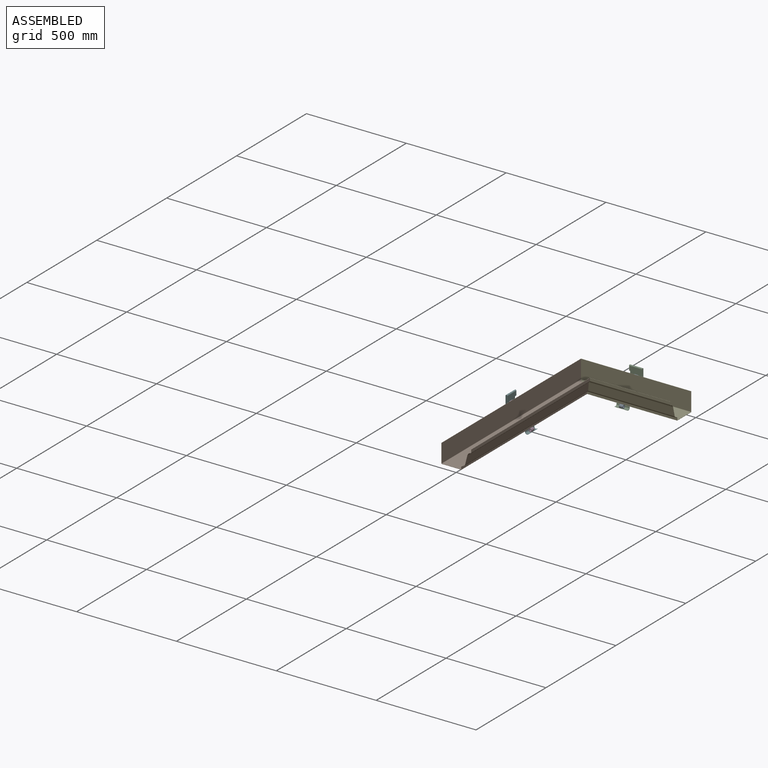
[diagram: assembled view]
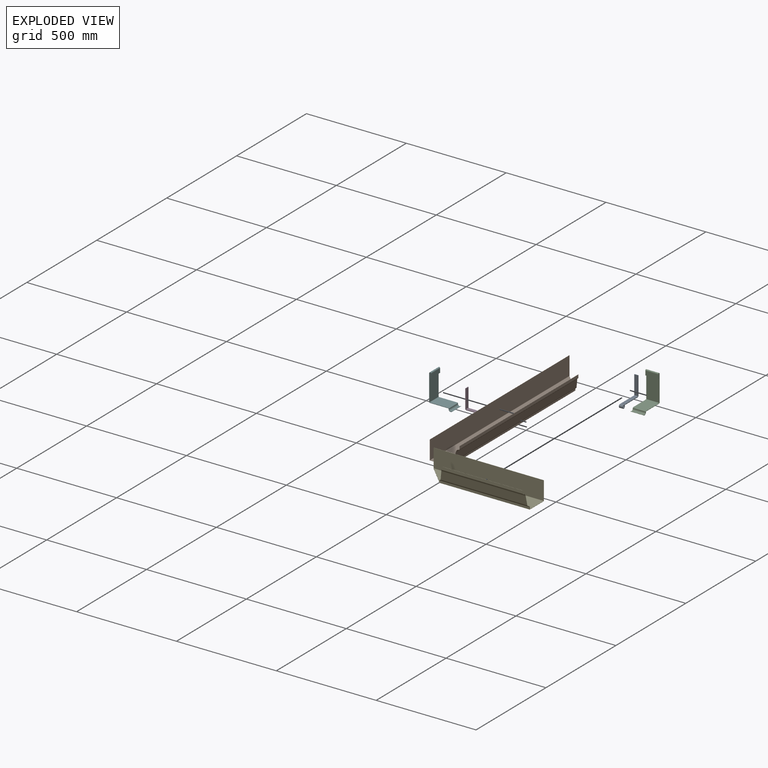
[diagram: exploded view]
GUIDED TOUR — MATED ASSEMBLY (Onshape document b7205769f9f9306b6174eeb3, AutoMate assembly b7205769f9f9306b6174eeb3_b50e65c4dc215c41da958e11_097d753cb203ef7b1b8f59bb_default)

This assembly has 6 components, labeled P0..P5 below (a component is one placed occurrence of a part; the same part can appear more than once), held together by 4 mates. A mate is a constraint between two components; its type names the relative motion it leaves free:
  FASTENED — locks the two components together rigidly (no relative motion),
  REVOLUTE — leaves rotation about the listed axis free (a hinge).
Axis/direction vectors are unit vectors and 'through' points are millimeter coordinates, both in the assembly's world frame.

MATES
  1. FASTENED "Fastened 1": P1 <-> P3, direction (-1.000, 0.000, 0.000) through (-52.86, -30.80, -22.14) mm
  2. REVOLUTE "Revolute 1": P3 <-> P5, axis (0.000, 1.000, 0.000) through (49.14, -30.80, -125.32) mm
  3. FASTENED "Fastened 3": P0 <-> P4, direction (0.000, -1.000, 0.000) through (223.16, 468.43, -22.14) mm
  4. REVOLUTE "Revolute 1": P0 <-> P2, axis (1.000, 0.000, 0.000) through (223.16, 366.43, -125.32) mm

ASSEMBLY ORDER
  1. P4 — the base component [order verified]
  2. P0 [order verified]
  3. P3 [order verified]
  4. P1 [order verified]
  5. P2 [order verified]
  6. P5 [order verified]
Order-tag legend:
  [order verified] — this step's position reverses a verified removal order: the component was checked to insert without passing through the ones already placed.

Of the 6 components, 2 carry the full construction recipe — the FeatureScript program that regenerates the part's solid from scratch; the rest are supplied as boundary geometry only.
Each toured component is shown spotlighted twice — in the assembled view, then in the exploded view, where a leader line traces a displaced component back to its assembled socket (saturated green if recipe-attached, orange if geometry-only; every other component desaturated gray) — followed by its recipe or geometry summary and the mates that hold it.
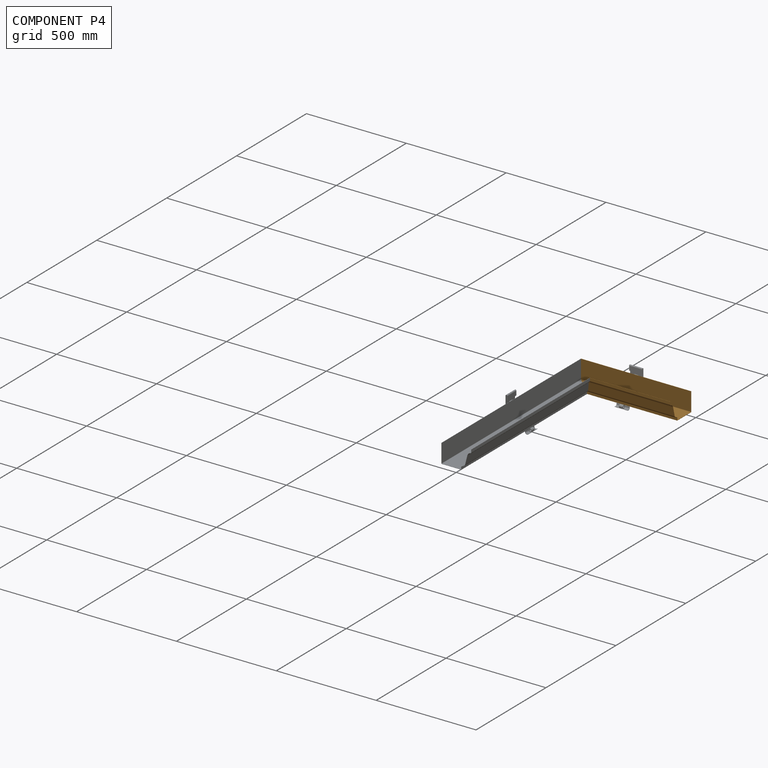
[diagram: component P4 — assembled]
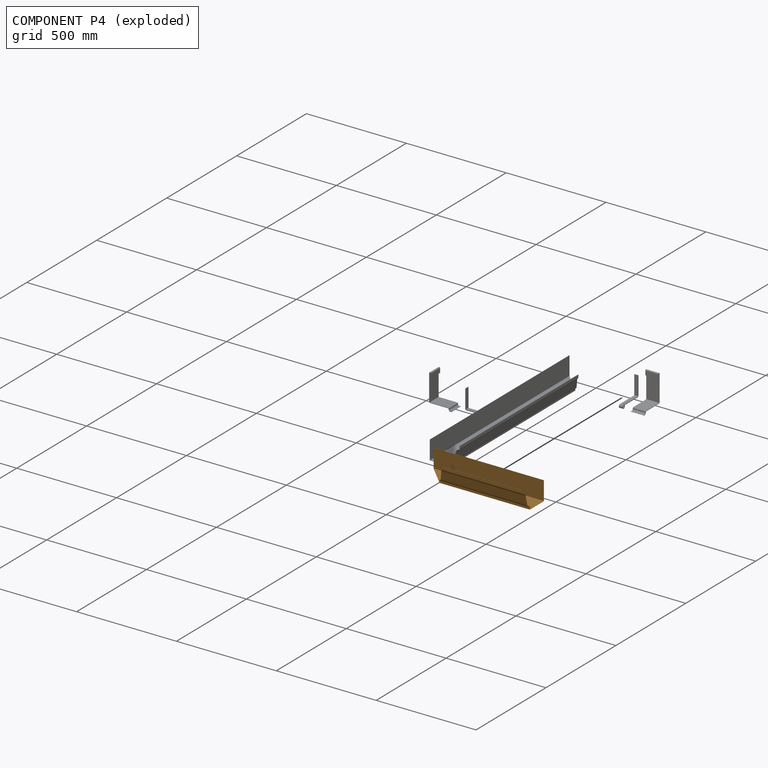
[diagram: component P4 — exploded]
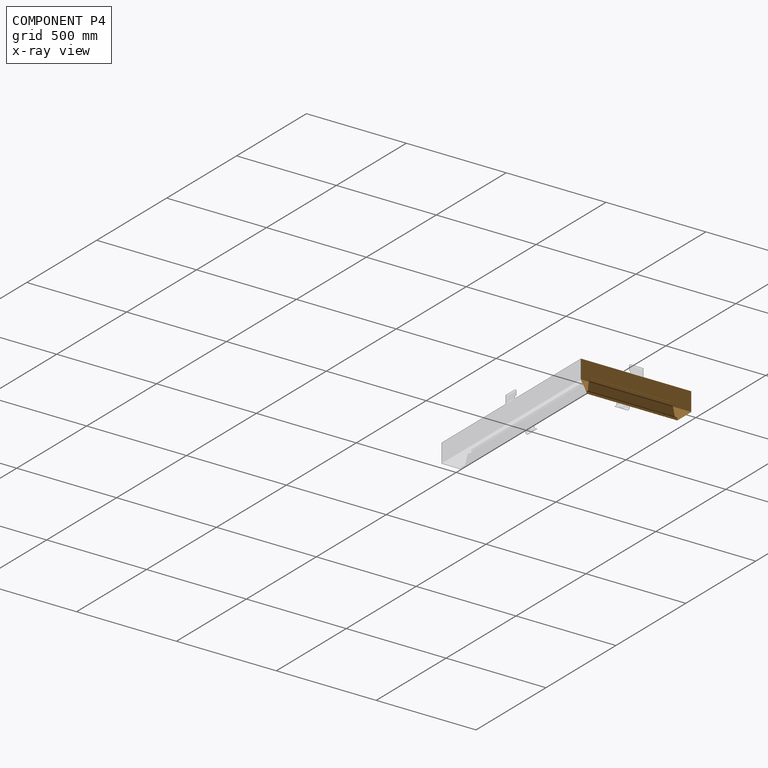
[diagram: component P4 — x-ray view]
COMPONENT P4 — geometry summary (no construction recipe available for this part):
  bounding box: 552.0 x 150.0 x 105.0 mm
  B-rep topology: 1 solid, 28 faces, 160 edges
  volume: 154924 mm^3 (2% of its bounding box)
Held by: FASTENED mate "Fastened 3" to P0.
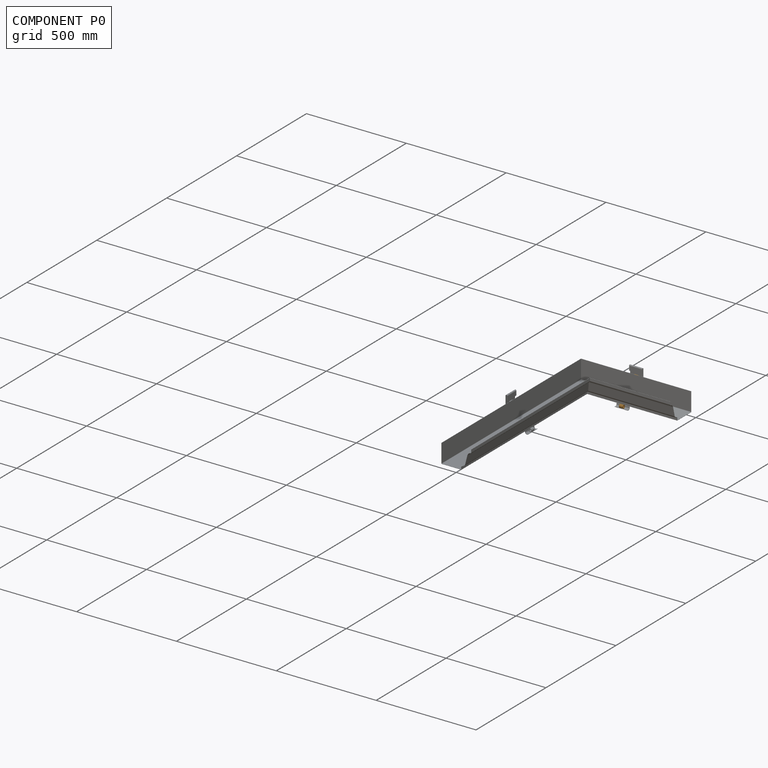
[diagram: component P0 — assembled]
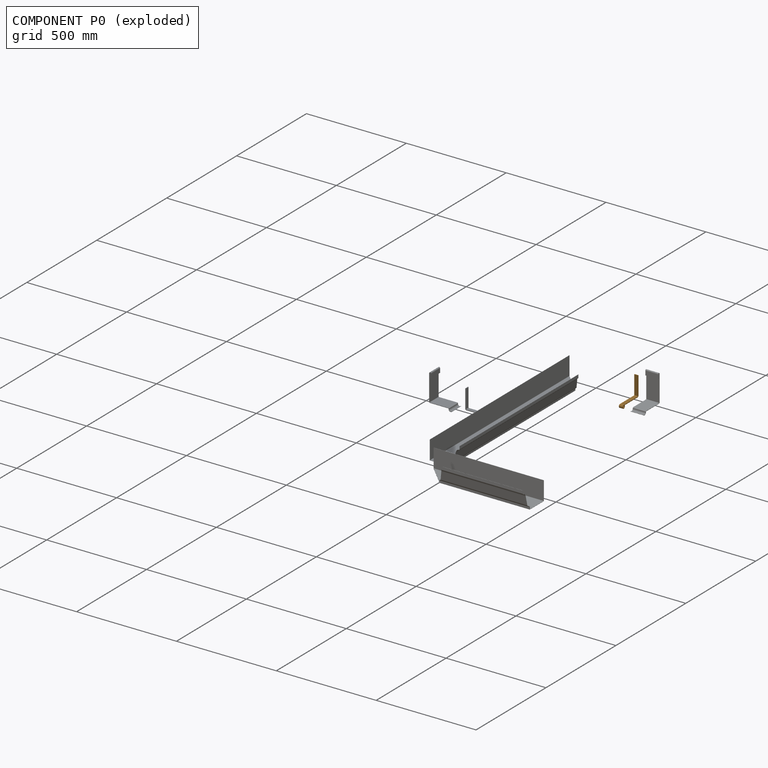
[diagram: component P0 — exploded]
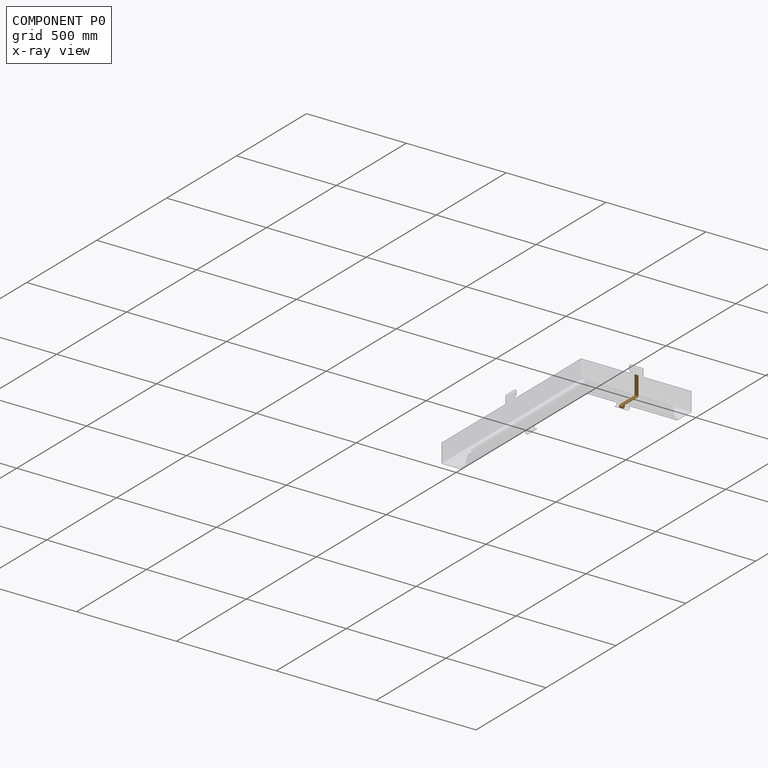
[diagram: component P0 — x-ray view]
COMPONENT P0 — geometry summary (no construction recipe available for this part):
  bounding box: 113.4 x 111.4 x 19.0 mm
  B-rep topology: 1 solid, 15 faces, 78 edges
  volume: 14197 mm^3 (6% of its bounding box)
Held by: FASTENED mate "Fastened 3" to P4; REVOLUTE mate "Revolute 1" to P2.
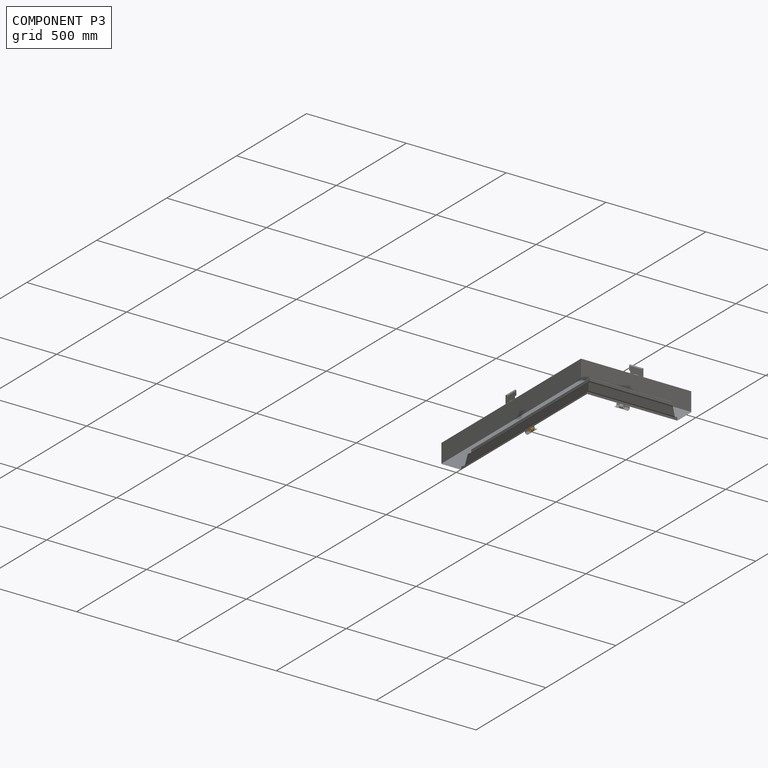
[diagram: component P3 — assembled]
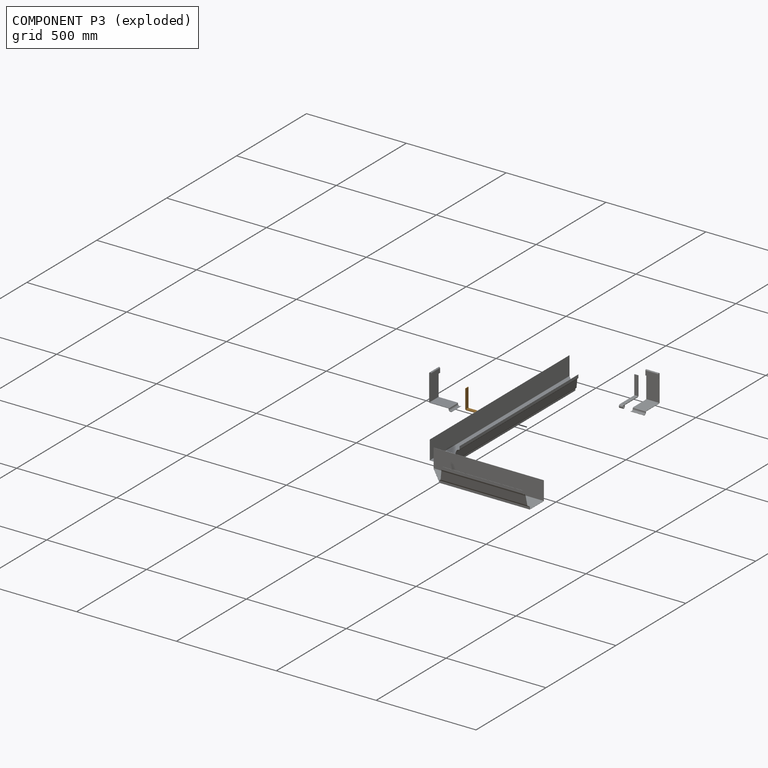
[diagram: component P3 — exploded]
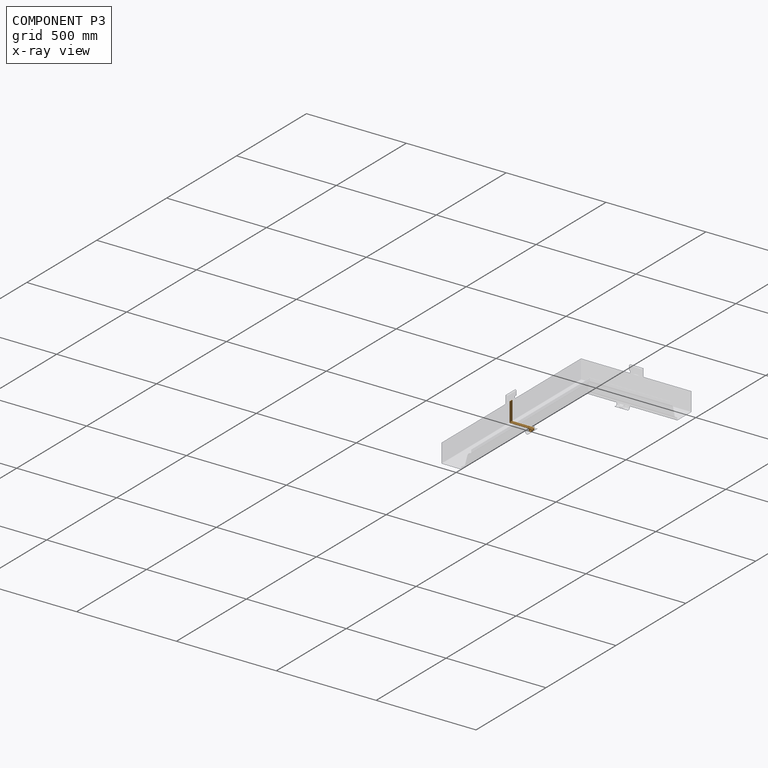
[diagram: component P3 — x-ray view]
COMPONENT P3 — geometry summary (no construction recipe available for this part):
  bounding box: 113.4 x 111.4 x 19.0 mm
  B-rep topology: 1 solid, 15 faces, 78 edges
  volume: 14197 mm^3 (6% of its bounding box)
Held by: FASTENED mate "Fastened 1" to P1; REVOLUTE mate "Revolute 1" to P5.
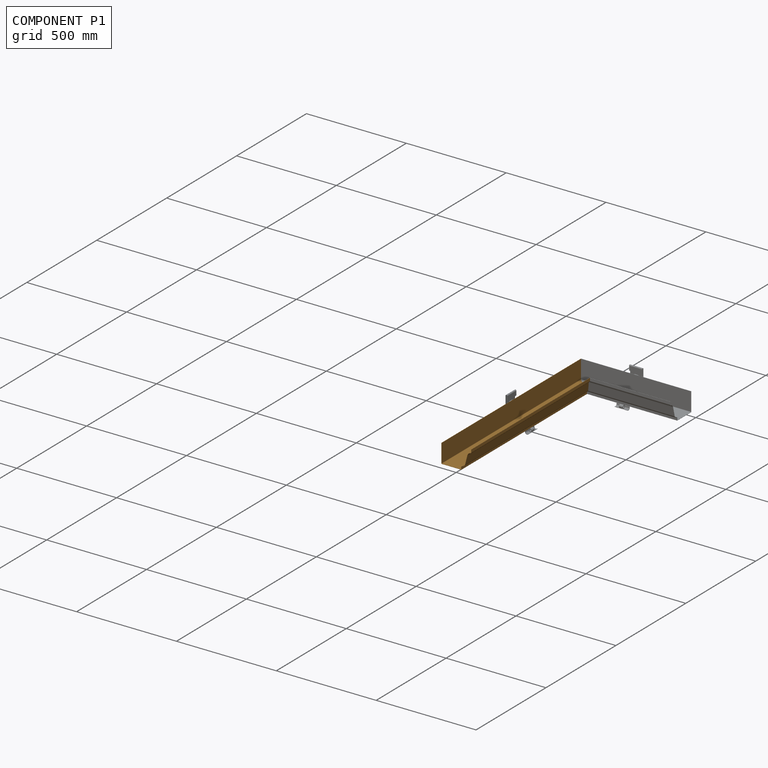
[diagram: component P1 — assembled]
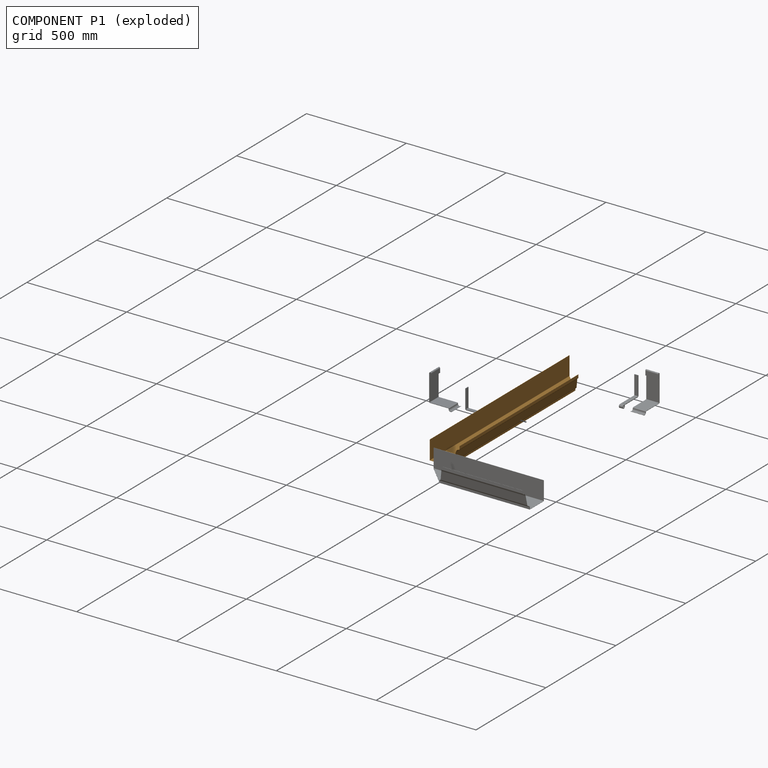
[diagram: component P1 — exploded]
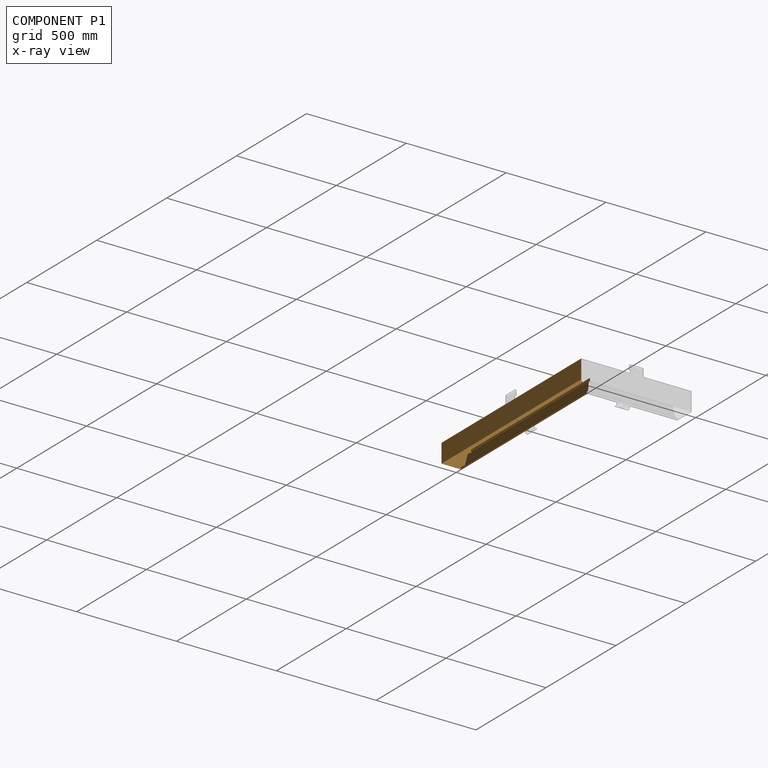
[diagram: component P1 — x-ray view]
COMPONENT P1 — geometry summary (no construction recipe available for this part):
  bounding box: 998.5 x 150.0 x 105.0 mm
  B-rep topology: 1 solid, 27 faces, 152 edges
  volume: 297000 mm^3 (2% of its bounding box)
Held by: FASTENED mate "Fastened 1" to P3.
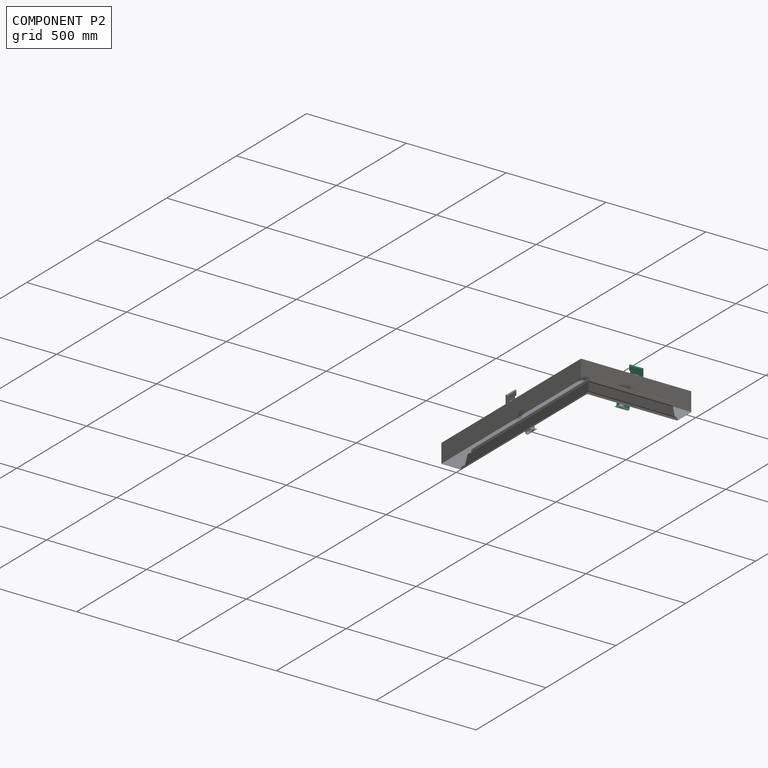
[diagram: component P2 — assembled]
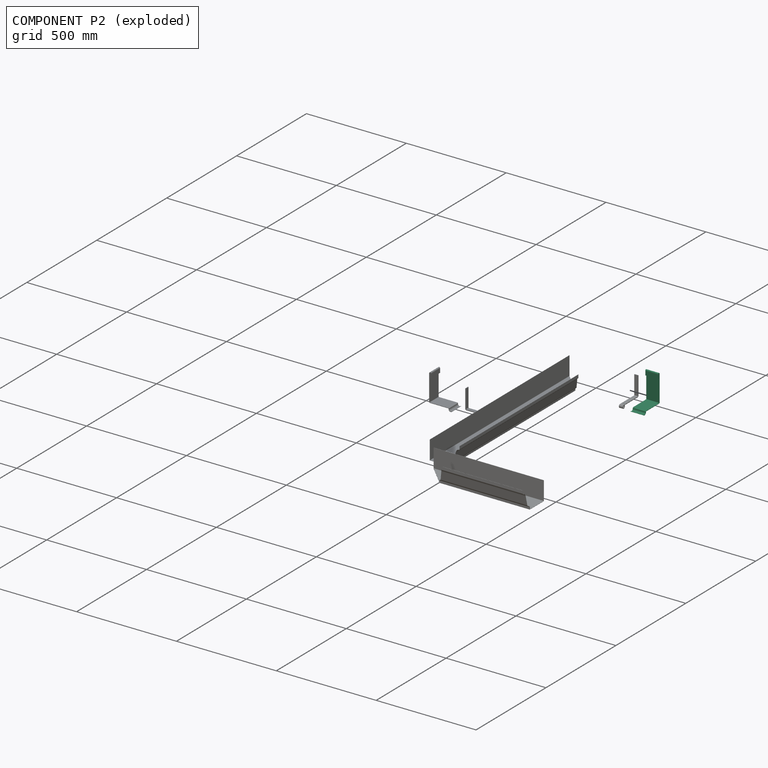
[diagram: component P2 — exploded]
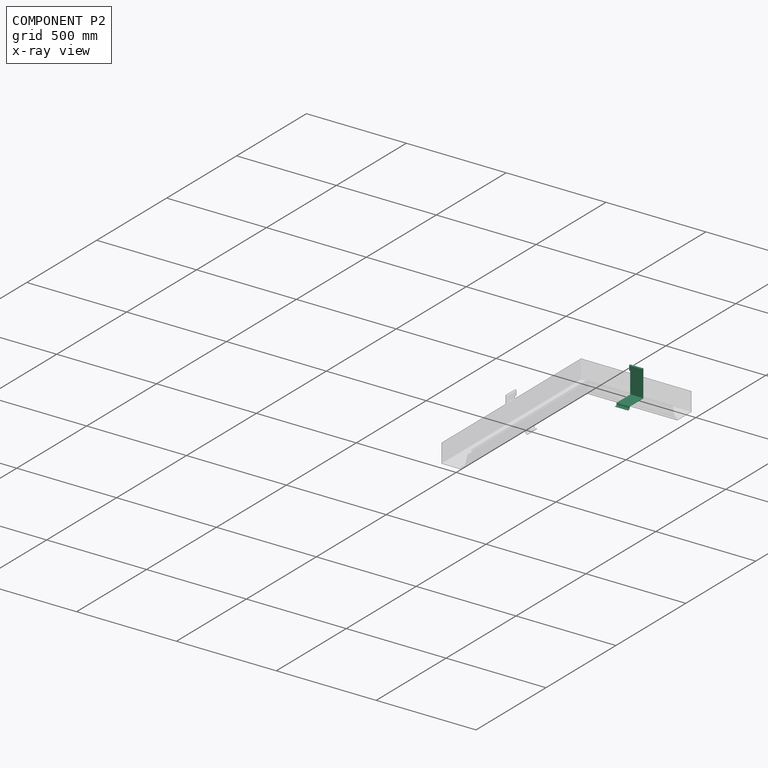
[diagram: component P2 — x-ray view]
COMPONENT P2 — recipe-attached (CADFS 00960272, mesh-verified: the recipe's output STEP matches this component's geometry to below the mesh-comparison resolution (tessellation chordal tolerance ~0.302 mm)).
Held by: REVOLUTE mate "Revolute 1" to P0.
Construction recipe (FeatureScript — the CAD program that rebuilds this solid; sketch coordinates are in the units given by the * unit suffixes, e.g. mm):

FeatureScript 1540;
import(path : "onshape/std/geometry.fs", version : "1540.0");
import(path : "onshape/std/common.fs", version : "1540.0");
const mm = millimeter;
const VERTEX = EntityType.VERTEX;
const EDGE = EntityType.EDGE;
const FACE = EntityType.FACE;
const BODY = EntityType.BODY;
function v(x, y){return vector(x, y);}
function OD(order){return orderDisambiguation(order);}
function OSD(set){return originalSetDisambiguation(set);}
function TD(topology){return topologyDisambiguation(topology);}
function TDD(query){return trueDependencyDisambiguation(query);}
function sQuery(a, b, c) {return sketchEntityQuery(a, b, c);}

annotation { "Feature Type Name" : "Feature", "Feature Type Description" : "" }
export const myFeature = defineFeature(function(context is Context, id is Id, definition is map)
    precondition{}
    {
        {
            var Q0;
            Q0=qCreatedBy(makeId("Front.planeOp"),FACE);
            var sketch = newSketch(context, id + "F0", { "sketchPlane" : qUnion([Q0])});
            skLineSegment(sketch, "E0.bottom", {"start": v(-50, 1.6) * mm, "end": v(50, 1.6) * mm});
            skLineSegment(sketch, "E0.top", {"start": v(-50, -1.6) * mm, "end": v(50, -1.6) * mm});
            skLineSegment(sketch, "E0.left", {"start": v(-50, 1.6) * mm, "end": v(-50, -1.6) * mm});
            skLineSegment(sketch, "E0.right", {"start": v(50, 1.6) * mm, "end": v(50, -1.6) * mm});
            skPoint(sketch, "E0.middle", {"position": v(0, 0) * mm});
            skPoint(sketch, "E1", {"position": v(-50, 6.6) * mm});
            skCircle(sketch, "E2", {"center": v(-50, 6.6) * mm, "radius": 5 * mm});
            skCircle(sketch, "E3", {"center": v(-50, 6.6) * mm, "radius": 8.2 * mm});
            skLineSegment(sketch, "E4.bottom", {"start": v(-50, 6.6) * mm, "end": v(-41.8, 6.6) * mm});
            skLineSegment(sketch, "E4.top", {"start": v(-50, 1.6) * mm, "end": v(-41.8, 1.6) * mm});
            skLineSegment(sketch, "E4.left", {"start": v(-50, 6.6) * mm, "end": v(-50, 1.6) * mm});
            skLineSegment(sketch, "E4.right", {"start": v(-41.8, 6.6) * mm, "end": v(-41.8, 1.6) * mm});
            skLineSegment(sketch, "E5.bottom", {"start": v(-50, 1.6) * mm, "end": v(-45, 1.6) * mm});
            skLineSegment(sketch, "E5.top", {"start": v(-50, 6.6) * mm, "end": v(-45, 6.6) * mm});
            skLineSegment(sketch, "E5.left", {"start": v(-50, 1.6) * mm, "end": v(-50, 6.6) * mm});
            skLineSegment(sketch, "E5.right", {"start": v(-45, 1.6) * mm, "end": v(-45, 6.6) * mm});
            skLineSegment(sketch, "E6.bottom", {"start": v(-45, 1.6) * mm, "end": v(-41.8, 1.6) * mm});
            skLineSegment(sketch, "E6.top", {"start": v(-45, 2.1) * mm, "end": v(-41.8, 2.1) * mm});
            skLineSegment(sketch, "E6.left", {"start": v(-45, 1.6) * mm, "end": v(-45, 2.1) * mm});
            skLineSegment(sketch, "E6.right", {"start": v(-41.8, 1.6) * mm, "end": v(-41.8, 2.1) * mm});
            skLineSegment(sketch, "E7.bottom", {"start": v(50, 1.6) * mm, "end": v(53.2, 1.6) * mm});
            skLineSegment(sketch, "E7.top", {"start": v(50, -131.6) * mm, "end": v(53.2, -131.6) * mm});
            skLineSegment(sketch, "E7.left", {"start": v(50, 1.6) * mm, "end": v(50, -131.6) * mm});
            skLineSegment(sketch, "E7.right", {"start": v(53.2, 1.6) * mm, "end": v(53.2, -131.6) * mm});
            skSolve(sketch);
        }
        {
            var Q0;
            {var subQ0=sQuery(id+"F0.wireOp",EDGE,"E0.left");Q0=makeQuery(id+"F0.imprint","IMPRINT",FACE,{"disambiguationData":[TD([[makeQuery(id+"F0.imprint","IMPRINT",EDGE,{"derivedFrom":subQ0}),-1.0]])]});}
            var Q1;
            {var subQ3=sQuery(id+"F0.wireOp",EDGE,"E6.top");var subQ5=sQuery(id+"F0.wireOp",EDGE,"E5.right");var subQ7=makeQuery(id+"F0.imprint","INTERSECT",VERTEX,{"derivedFrom":[subQ5,subQ3]});Q1=makeQuery(id+"F0.imprint","IMPRINT",FACE,{"disambiguationData":[TD([[makeQuery(id+"F0.imprint","IMPRINT",EDGE,{"disambiguationData":[TD([[subQ7,-1.0]])],"derivedFrom":subQ3}),1.0]])]});}
            var Q2;
            {var subQ1=sQuery(id+"F0.wireOp",EDGE,"E0.top");Q2=makeQuery(id+"F0.imprint","IMPRINT",FACE,{"disambiguationData":[TD([[makeQuery(id+"F0.imprint","IMPRINT",EDGE,{"derivedFrom":subQ1}),1.0]])]});}
            var Q3;
            {var subQ0=sQuery(id+"F0.wireOp",EDGE,"E0.left");Q3=makeQuery(id+"F0.imprint","IMPRINT",FACE,{"disambiguationData":[TD([[makeQuery(id+"F0.imprint","IMPRINT",EDGE,{"derivedFrom":subQ0}),1.0]])]});}
            var Q4;
            {var subQ0=sQuery(id+"F0.wireOp",EDGE,"E4.right");var subQ3=sQuery(id+"F0.wireOp",EDGE,"E6.top");var subQ5=makeQuery(id+"F0.imprint","INTERSECT",VERTEX,{"derivedFrom":[subQ0,subQ3]});Q4=makeQuery(id+"F0.imprint","IMPRINT",FACE,{"disambiguationData":[TD([[makeQuery(id+"F0.imprint","IMPRINT",EDGE,{"disambiguationData":[TD([[subQ5,1.0]])],"derivedFrom":subQ3}),1.0]])]});}
            var Q5;
            Q5=makeQuery(id+"F0.imprint","IMPRINT",FACE,{"disambiguationData":[TD([[makeQuery(id+"F0.imprint","IMPRINT",EDGE,{"derivedFrom":sQuery(id+"F0.wireOp",EDGE,"E0.right")}),1.0]])]});
            extrude(context, id + "F1", {"entities" : qUnion([Q0, Q1, Q2, Q3, Q4, Q5]), "depth" : 19 * mm, "offsetDistance" : 25 * mm});
        }
        {
            var Q0;
            Q0=makeQuery(id+"F1.opExtrude","SWEPT_EDGE",EDGE,{"disambiguationData":[OSD([sQuery(id+"F0.wireOp",EDGE,"E0.top"),sQuery(id+"F0.wireOp",EDGE,"E0.right"),sQuery(id+"F0.wireOp",EDGE,"E7.left")])]});
            fillet(context, id + "F2", {"entities" : qUnion([Q0]), "radius" : 2 * mm, "tangentPropagation" : true, "allowEdgeOverflow" : false});
        }
        {
            var Q0;
            Q0=makeQuery(id+"F1.opExtrude","CAP_FACE",FACE,{"disambiguationData":[OSD([sQuery(id+"F0.wireOp",EDGE,"E0.bottom"),sQuery(id+"F0.wireOp",EDGE,"E0.top"),sQuery(id+"F0.wireOp",EDGE,"E2"),sQuery(id+"F0.wireOp",EDGE,"E3"),sQuery(id+"F0.wireOp",EDGE,"E4.right"),sQuery(id+"F0.wireOp",EDGE,"E5.right"),sQuery(id+"F0.wireOp",EDGE,"E6.top"),sQuery(id+"F0.wireOp",EDGE,"E7.bottom"),sQuery(id+"F0.wireOp",EDGE,"E7.top"),sQuery(id+"F0.wireOp",EDGE,"E7.left"),sQuery(id+"F0.wireOp",EDGE,"E7.right")])],"isStart":false});
            extrude(context, id + "F3", {"entities" : qUnion([Q0]), "operationType" : NewBodyOperationType.REMOVE, "oppositeDirection" : true, "depth" : 18 * mm, "offsetDistance" : 25 * mm});
        }
        {
            var Q0;
            Q0=makeQuery(id+"F3.boolean.opBoolean","COPY",FACE,{"derivedFrom":makeQuery(id+"F3.opExtrude","CAP_FACE",FACE,{"disambiguationData":[OSD([sQuery(id+"F0.wireOp",EDGE,"E0.bottom"),sQuery(id+"F0.wireOp",EDGE,"E0.top"),sQuery(id+"F0.wireOp",EDGE,"E2"),sQuery(id+"F0.wireOp",EDGE,"E3"),sQuery(id+"F0.wireOp",EDGE,"E4.right"),sQuery(id+"F0.wireOp",EDGE,"E5.right"),sQuery(id+"F0.wireOp",EDGE,"E6.top"),sQuery(id+"F0.wireOp",EDGE,"E7.bottom"),sQuery(id+"F0.wireOp",EDGE,"E7.top"),sQuery(id+"F0.wireOp",EDGE,"E7.left"),sQuery(id+"F0.wireOp",EDGE,"E7.right")])],"isStart":false})});
            extrude(context, id + "F4", {"entities" : qUnion([Q0]), "operationType" : NewBodyOperationType.REMOVE, "oppositeDirection" : true, "depth" : 1 * mm, "offsetDistance" : 25 * mm});
        }
        {
            var Q0;
            Q0=qCreatedBy(makeId("Front.planeOp"),FACE);
            var sketch = newSketch(context, id + "F5", { "sketchPlane" : qUnion([Q0])});
            skLineSegment(sketch, "E8.bottom", {"start": v(-10.63, 7.7) * mm, "end": v(-10.63, 7.7) * mm});
            skLineSegment(sketch, "E9.right", {"start": v(-5.13, 6) * mm, "end": v(-5.13, 7.7) * mm});
            skLineSegment(sketch, "E10.trimOffspring", {"start": v(-7.43, 7.7) * mm, "end": v(-7.43, 7.7) * mm});
            skLineSegment(sketch, "E11", {"start": v(-4.13, 5) * mm, "end": v(88.87, 5) * mm});
            skLineSegment(sketch, "E12", {"start": v(-7.13, 7.7) * mm, "end": v(-7.13, 6) * mm});
            skLineSegment(sketch, "E13", {"start": v(-4.13, 3) * mm, "end": v(88.87, 3) * mm});
            skLineSegment(sketch, "E14", {"start": v(-21.64, 13.72) * mm, "end": v(-23.05, 15.13) * mm});
            skPoint(sketch, "E15", {"position": v(-4.13, 6) * mm});
            skArc(sketch, "E16", {"start": v(-5.13, 6) * mm, "mid": v(-4.84, 5.3) * mm, "end": v(-4.13, 5) * mm});
            skArc(sketch, "E17", {"start": v(-7.13, 6) * mm, "mid": v(-6.25, 3.88) * mm, "end": v(-4.13, 3) * mm});
            skPoint(sketch, "E18.orphan", {"position": v(-5.13, 5) * mm});
            skPoint(sketch, "E19", {"position": v(-15.63, 7.7) * mm});
            skArc(sketch, "E20", {"start": v(-7.13, 7.7) * mm, "mid": v(-12.38, 15.56) * mm, "end": v(-21.64, 13.72) * mm});
            skArc(sketch, "E21", {"start": v(-5.13, 7.7) * mm, "mid": v(-11.61, 17.4) * mm, "end": v(-23.05, 15.13) * mm});
            skPoint(sketch, "E22", {"position": v(88.87, 2) * mm});
            skArc(sketch, "E23", {"start": v(89.87, 2) * mm, "mid": v(89.58, 2.71) * mm, "end": v(88.87, 3) * mm});
            skArc(sketch, "E24.trimOffspring", {"start": v(91.87, 2) * mm, "mid": v(91, 4.13) * mm, "end": v(88.87, 5) * mm});
            skLineSegment(sketch, "E25", {"start": v(82.87, -107.8) * mm, "end": v(84.87, -107.8) * mm});
            skPoint(sketch, "E26", {"position": v(87.37, -129.3) * mm});
            skArc(sketch, "E27", {"start": v(84.87, -129.3) * mm, "mid": v(87.37, -131.8) * mm, "end": v(89.87, -129.3) * mm});
            skArc(sketch, "E28", {"start": v(82.87, -129.3) * mm, "mid": v(87.37, -133.8) * mm, "end": v(91.87, -129.3) * mm});
            skLineSegment(sketch, "E29", {"start": v(82.87, -107.8) * mm, "end": v(82.87, -129.3) * mm});
            skLineSegment(sketch, "E30", {"start": v(84.87, -107.8) * mm, "end": v(84.87, -129.3) * mm});
            skLineSegment(sketch, "E31", {"start": v(89.87, 2) * mm, "end": v(89.87, -129.3) * mm});
            skLineSegment(sketch, "E32", {"start": v(91.87, -129.3) * mm, "end": v(91.87, 2) * mm});
            skSolve(sketch);
        }
        {
            var Q0;
            Q0=qSketchRegion(id+"F5",true);
            extrude(context, id + "F6", {"entities" : qUnion([Q0]), "depth" : 65 * mm, "offsetDistance" : 25 * mm});
        }
    });
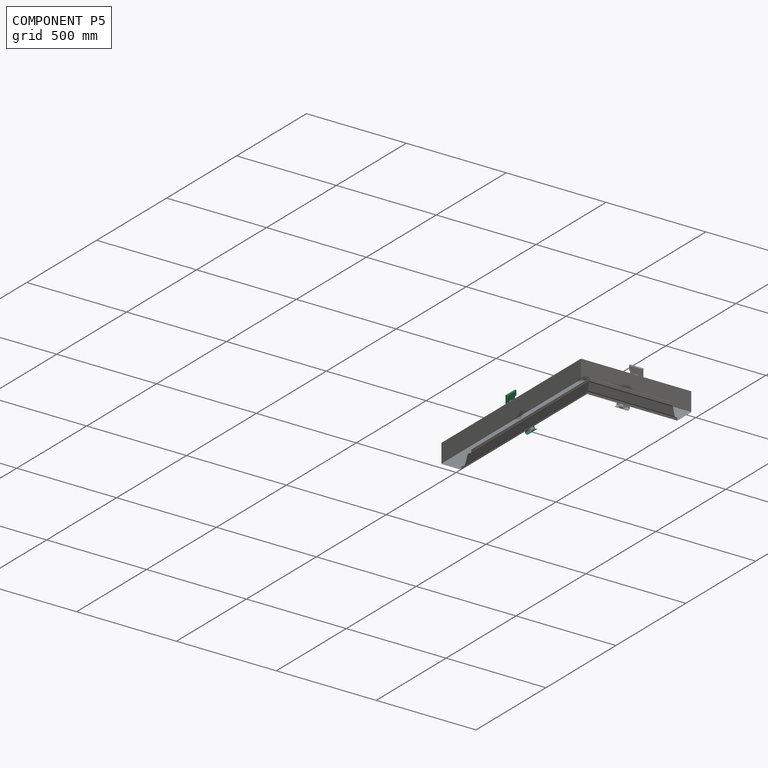
[diagram: component P5 — assembled]
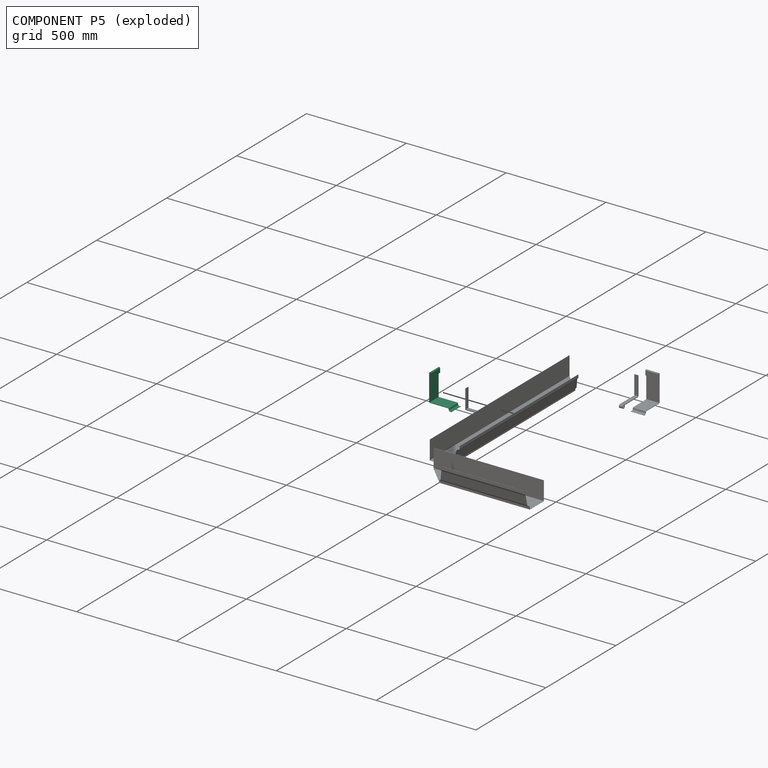
[diagram: component P5 — exploded]
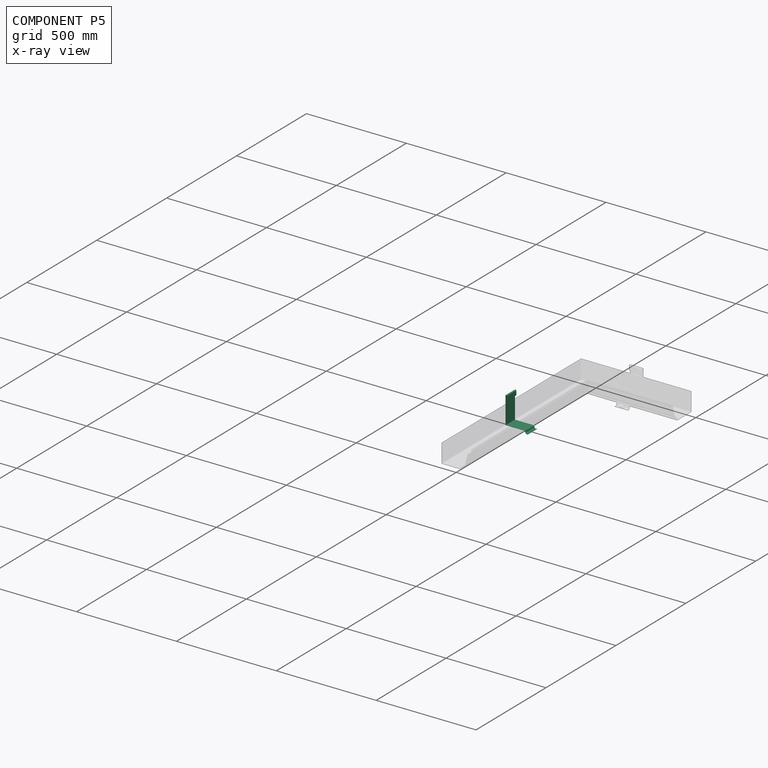
[diagram: component P5 — x-ray view]
COMPONENT P5 — same part as P2 (CADFS 00960272); its construction recipe is shown at P2.
Held by: REVOLUTE mate "Revolute 1" to P3.
PROVENANCE & LICENSES
Assembly (occurrences, transforms, mates, per-part STEP geometry): AutoMate dataset, Zenodo record 7776208, CC0.
Construction recipes: CADFS (HuggingFace VladPyatov/CADFS, CC-BY-4.0, layered over the ABC dataset), FeatureScript reconstruction programs keyed by ABC model id.
Join: ABC meta listings map ABC model id -> Onshape documentId; within a shared document, parts are matched by geometric signature (bounding-box dims + volume at 0.1% relative tolerance, exact B-rep face/solid counts).
Verification: 2 of this assembly's 6 components carry a recipe attachment, and every attachment is mesh-verified: the CADFS STEP and the AutoMate member STEP were compared as meshes in their shared local frame (symmetric sampled-point-to-mesh distance); worst across the 2 attachments: below the mesh-comparison resolution (tessellation chordal tolerance ~0.302 mm) on a 201 mm part.
Renders: orthographic iso camera (az 35 / el 25); the floor grid conveys scale (grid pitch printed in each image; no ruler). In the exploded view each component is displaced by its stored offset vector: the offsets alone carry the explosion direction (mate normal/axis signs are not orientation cues and do not encode it), and separation distances are assigned per mate-chain, not proportionally to assembly-order depth.
